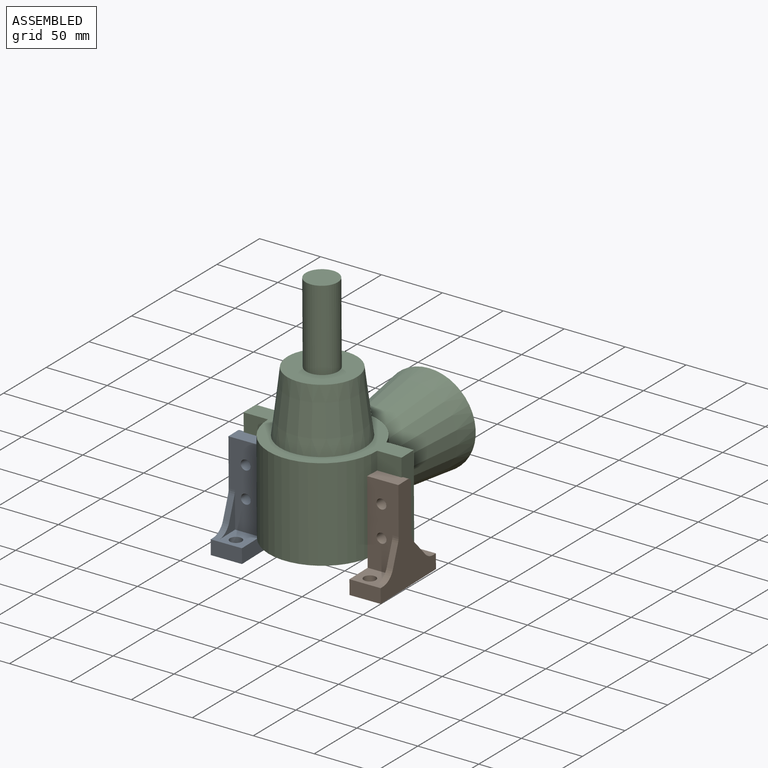
[diagram: assembled view]
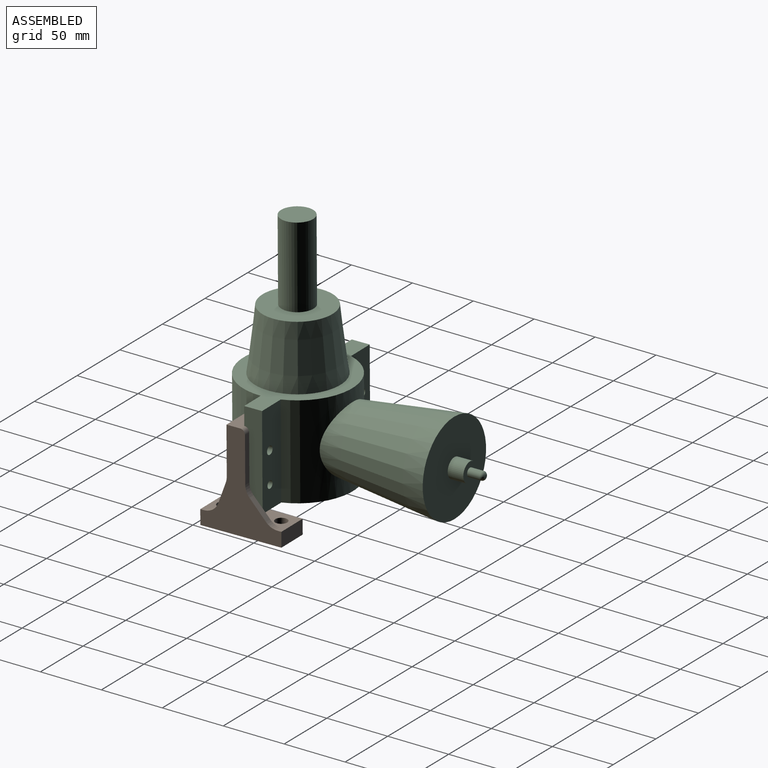
[diagram: assembled view, second angle]
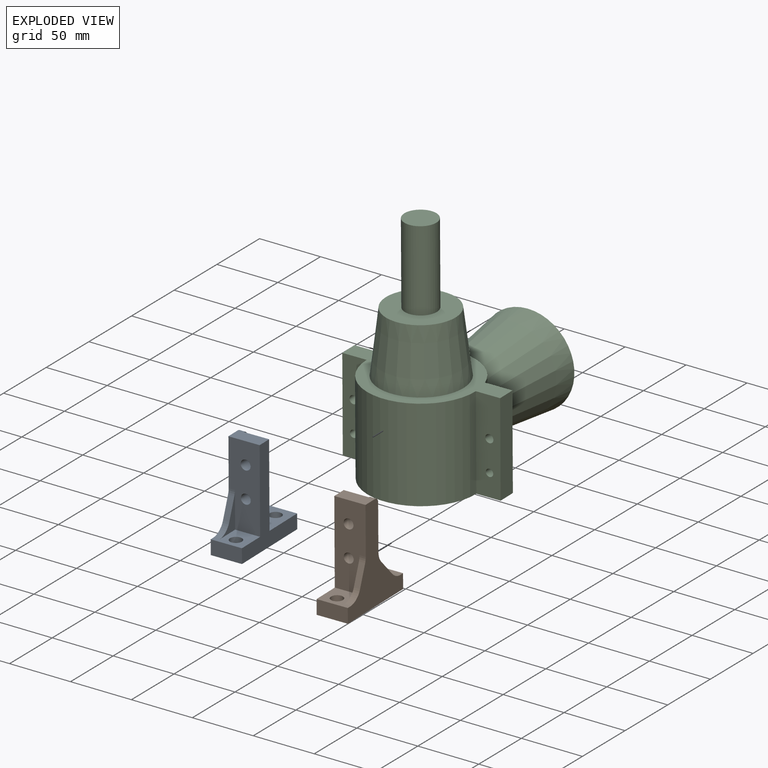
[diagram: exploded view]
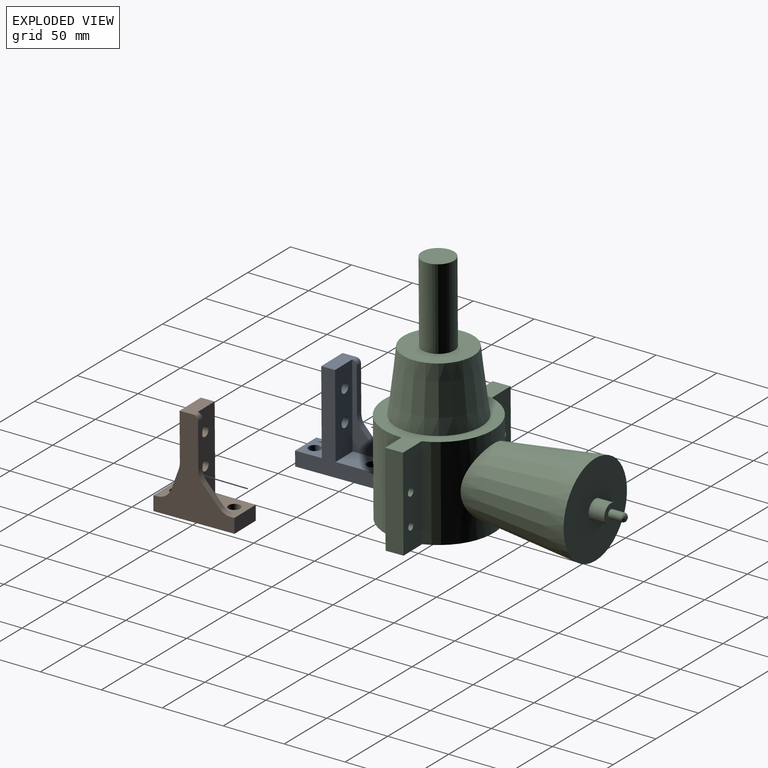
[diagram: exploded view, second angle]
ASSEMBLY  parts=3 mates=2
PART A: 24 faces, bbox 65.9x79.8x25.4 mm
  f0: cylinder r=4.02mm len=11.24mm, axis (1,0,0), area 284mm2, adj f4,f9
  f1: cylinder r=4.02mm len=11.24mm, axis (1,0,0), area 284mm2, adj f4,f9
  f2: plane 29.45x18.88mm, normal (0,0,1), area 150.9mm2, adj f9,f10,f17,f22,f23
  f3: plane 68.09x29.9mm, normal (0,0,1), area 490.7mm2, adj f4,f5,f6,f7,f15,f20,f21
  f4: plane 68.09x20.32mm, normal (-1,0,0), area 1281.9mm2, adj f0,f1,f3,f7,f12,f15
  f5: plane 14.57x13.41mm, normal (-0.74,-0.68,0), area 100.6mm2, adj f3,f11,f20,f21
  f6: plane 37.01x5.08mm, normal (-1,0,0), area 188mm2, adj f3,f7,f11,f20
  f7: cylinder r=3.81mm len=25.4mm, axis (0,0,1), area 30.9mm2, adj f3,f4,f6,f8,f11,f12
  f8: plane 25.4x11.22mm, normal (0,-1,0), area 284.9mm2, adj f7,f9,f11,f12
  f9: plane 68.09x25.4mm, normal (1,0,0), area 1478.2mm2, adj f0,f1,f2,f8,f11,f12,f17,f22
  f10: plane 16.75x6.18mm, normal (0.94,-0.35,0), area 90.7mm2, adj f2,f11,f22,f23
  f11: plane 79.81x65.93mm, normal (0,0,-1), area 2180mm2, adj f5,f6,f7,f8,f9,f10,f13,f14
  f12: plane 79.81x65.93mm, normal (0,0,1), area 1538.4mm2, adj f4,f7,f8,f9,f13,f14,f15,f17
  f13: plane 25.4x11.73mm, normal (1,0,0), area 297.8mm2, adj f11,f12,f17,f19
  f14: plane 25.4x11.73mm, normal (-1,0,0), area 297.8mm2, adj f11,f12,f15,f19
  f15: plane 32.96x25.4mm, normal (0,-1,0), area 610.4mm2, adj f3,f4,f11,f12,f14,f16,f21
  f16: cylinder r=4.88mm len=11.73mm, axis (0,1,0), area 359.9mm2, adj f15,f19
  f17: plane 25.4x21.72mm, normal (0,-1,0), area 381.1mm2, adj f2,f9,f11,f12,f13,f18,f23
  f18: cylinder r=4.87mm len=11.73mm, axis (0,1,0), area 359.1mm2, adj f17,f19
  f19: plane 65.93x25.4mm, normal (0,1,0), area 1524.9mm2, adj f11,f12,f13,f14,f16,f18
  f20: cylinder r=12.7mm len=8.6mm, axis (0,0,-1), area 48mm2, adj f3,f5,f6,f11
  f21: cylinder r=12.7mm len=9.34mm, axis (0,0,1), area 53.3mm2, adj f3,f5,f11,f15
  f22: cylinder r=12.7mm len=5.08mm, axis (0,0,-1), area 22.8mm2, adj f2,f9,f10,f11
  f23: cylinder r=12.7mm len=11.91mm, axis (0,0,-1), area 78.5mm2, adj f2,f10,f11,f17
PART B: 24 faces, bbox 65.9x79.8x25.4 mm
  f0: plane 25.4x11.73mm, normal (-1,0,0), area 297.8mm2, adj f2,f3,f11,f19
  f1: plane 25.4x11.73mm, normal (1,0,0), area 297.8mm2, adj f2,f3,f7,f19
  f2: plane 79.81x65.93mm, normal (0,0,1), area 1538.4mm2, adj f0,f1,f7,f8,f9,f10,f11,f18
  f3: plane 79.81x65.93mm, normal (0,0,-1), area 2180mm2, adj f0,f1,f6,f7,f8,f9,f11,f13
  f4: cylinder r=4.87mm len=11.73mm, axis (0,1,0), area 359.1mm2, adj f7,f19
  f5: cylinder r=4.88mm len=11.73mm, axis (0,1,0), area 359.9mm2, adj f11,f19
  f6: plane 14.57x13.41mm, normal (-0.74,0.68,0), area 100.6mm2, adj f3,f12,f20,f23
  f7: plane 25.4x21.72mm, normal (0,1,0), area 381.1mm2, adj f1,f2,f3,f4,f8,f14,f21
  f8: plane 68.09x25.4mm, normal (1,0,0), area 1478.2mm2, adj f2,f3,f7,f9,f14,f15,f16,f22
  f9: plane 25.4x11.22mm, normal (0,1,0), area 284.9mm2, adj f2,f3,f8,f18
  f10: plane 68.09x20.32mm, normal (-1,0,0), area 1281.9mm2, adj f2,f11,f12,f15,f16,f18
  f11: plane 32.96x25.4mm, normal (0,1,0), area 610.4mm2, adj f0,f2,f3,f5,f10,f12,f23
  f12: plane 68.09x29.9mm, normal (0,0,1), area 490.7mm2, adj f6,f10,f11,f17,f18,f20,f23
  f13: plane 16.75x6.18mm, normal (0.94,0.35,0), area 90.7mm2, adj f3,f14,f21,f22
  f14: plane 29.45x18.88mm, normal (0,0,1), area 150.9mm2, adj f7,f8,f13,f21,f22
  f15: cylinder r=4.02mm len=11.24mm, axis (1,0,0), area 284mm2, adj f8,f10
  f16: cylinder r=4.02mm len=11.24mm, axis (1,0,0), area 284mm2, adj f8,f10
  f17: plane 37.01x5.08mm, normal (-1,0,0), area 188mm2, adj f3,f12,f18,f20
  f18: cylinder r=3.81mm len=25.4mm, axis (0,0,1), area 30.9mm2, adj f2,f3,f9,f10,f12,f17
  f19: plane 65.93x25.4mm, normal (0,-1,0), area 1524.9mm2, adj f0,f1,f2,f3,f4,f5
  f20: cylinder r=12.7mm len=8.6mm, axis (0,0,-1), area 48mm2, adj f3,f6,f12,f17
  f21: cylinder r=12.7mm len=11.91mm, axis (0,0,-1), area 78.5mm2, adj f3,f7,f13,f14
  f22: cylinder r=12.7mm len=5.08mm, axis (0,0,-1), area 22.8mm2, adj f3,f8,f13,f14
  f23: cylinder r=12.7mm len=9.34mm, axis (0,0,1), area 53.3mm2, adj f3,f6,f11,f12
PART C: 25 faces, bbox 128.4x196.8x193.3 mm
  f0: plane 76.2x22.23mm, normal (0,1,0), area 1630.9mm2, adj f1,f7,f8,f9,f21,f22
  f1: cylinder r=44.43mm len=83.94mm, axis (0,0,-1), area 5934.9mm2, adj f0,f2,f8,f9,f10
  f2: plane 76.2x22.23mm, normal (0,1,0), area 1630.9mm2, adj f1,f3,f8,f9,f19,f20
  f3: plane 76.2x14.58mm, normal (-1,0,0), area 1110.8mm2, adj f2,f4,f8,f9
  f4: plane 76.2x19.77mm, normal (0,-1,0), area 1443.5mm2, adj f3,f5,f8,f9,f19,f20
  f5: cylinder r=44.43mm len=88.86mm, axis (0,0,-1), area 10636.4mm2, adj f4,f6,f8,f9
  f6: plane 76.2x19.77mm, normal (0,-1,0), area 1443.5mm2, adj f5,f7,f8,f9,f21,f22
  f7: plane 76.2x14.58mm, normal (1,0,0), area 1110.8mm2, adj f0,f6,f8,f9
  f8: plane 128.41x88.86mm, normal (0,0,1), area 3007.9mm2, adj f0,f1,f2,f3,f4,f5,f6,f7
  f9: plane 128.41x88.86mm, normal (0,0,-1), area 6802mm2, adj f0,f1,f2,f3,f4,f5,f6,f7
  f10: cone r=37.83mm half-angle=7deg, axis (0,1,0), area 17884.7mm2, adj f1,f11
  f11: plane 75.67x75.67mm, normal (0,1,0), area 4296.9mm2, adj f10,f14
  f12: cone r=44.11mm half-angle=7deg, axis (0,0,-1), area 10172.8mm2, adj f8,f13
  f13: plane 57.03x57.03mm, normal (0,0,1), area 2013.1mm2, adj f12,f23
  f14: cylinder r=7.98mm len=15.95mm, axis (0,-1,0), area 636.4mm2, adj f11,f15
  f15: plane 15.95x15.95mm, normal (0,1,0), area 162.7mm2, adj f14,f16
  f16: cylinder r=3.44mm len=10.16mm, axis (0,-1,0), area 219.4mm2, adj f15,f18
  f17: plane 1.79x1.79mm, normal (0,1,0), area 2.5mm2, adj f18
  f18: torus R=0.9mm, axis (0,1,0), area 63mm2, adj f16,f17
  f19: cylinder r=3mm len=14.58mm, axis (0,-1,0), area 275.2mm2, adj f2,f4
  f20: cylinder r=3.33mm len=14.58mm, axis (0,-1,0), area 305.1mm2, adj f2,f4
  f21: cylinder r=3.33mm len=14.58mm, axis (0,-1,0), area 305.1mm2, adj f0,f6
  f22: cylinder r=3mm len=14.58mm, axis (0,-1,0), area 275.2mm2, adj f0,f6
  f23: cylinder r=13.13mm len=66.34mm, axis (0,0,-1), area 5471.4mm2, adj f13,f24
  f24: plane 26.25x26.25mm, normal (0,0,1), area 541.4mm2, adj f23
PLACE A rot(axis=(-0.58,0.58,-0.57),119.3deg) t=(-81.84,-61.76,-36.32)mm
PLACE B rot(axis=(0.58,-0.57,-0.58),119.8deg) t=(56.47,-60.13,-36.19)mm
PLACE C rot(axis=(0.47,-0.06,0.88),0.8deg) t=(-12.75,-57.17,-17.92)mm
MATE cylindrical C.f20 <-> A.f1  axis (0.01,-1,-0.01) through (-68.04,-58.15,25.76)mm
MATE cylindrical B.f15 <-> C.f22  axis (-0.01,1,0.01) through (42.48,-56.45,0.47)mm
